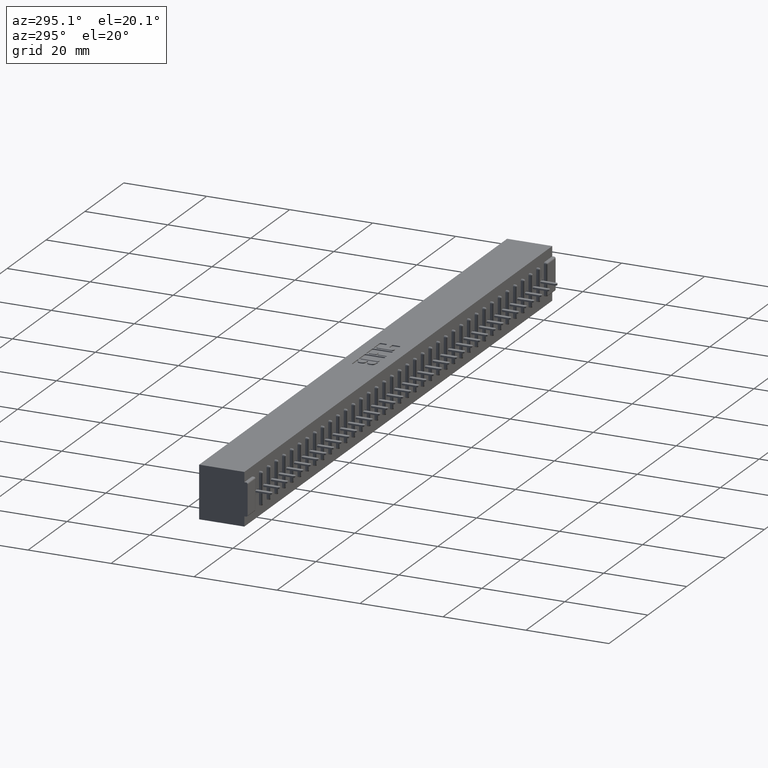
[diagram: clean part render]
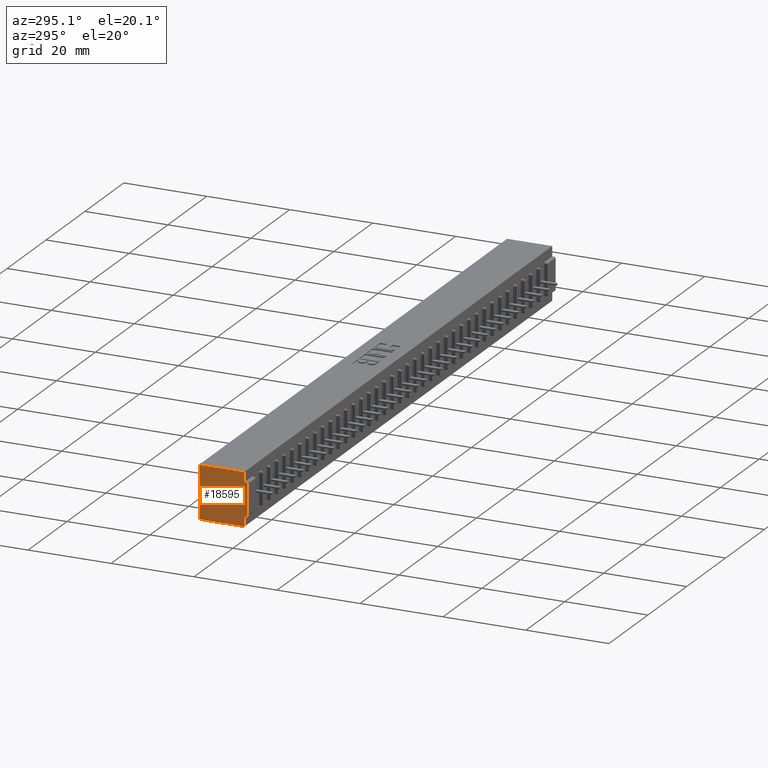
[diagram: same view with one face highlighted and labeled with its STEP entity id]
A machine part, auxiliary view. The second image highlights one B-rep face of the part: STEP entity #18595.
In plain terms, the highlighted planar face has unit normal (1, 0, -0).
Its self-contained STEP definition (entity closure, byte-faithful):
#83 = CARTESIAN_POINT ( 'NONE',  ( 0.2979999999999999900, 0.4600000000000000200, 0.0000000000000000000 ) ) ;
#749 = EDGE_CURVE ( 'NONE', #1779, #20108, #16106, .T. ) ;
#796 = CARTESIAN_POINT ( 'NONE',  ( 0.2979999999999999900, 0.0000000000000000000, -0.1084999999999999400 ) ) ;
#954 = PLANE ( 'NONE',  #8414 ) ;
#1779 = VERTEX_POINT ( 'NONE', #83 ) ;
#2503 = VECTOR ( 'NONE', #5668, 39.37007874015748100 ) ;
#3182 = ORIENTED_EDGE ( 'NONE', *, *, #25985, .F. ) ;
#3316 = EDGE_CURVE ( 'NONE', #27286, #22358, #12498, .T. ) ;
#3491 = VECTOR ( 'NONE', #31690, 39.37007874015748100 ) ;
#3698 = EDGE_CURVE ( 'NONE', #29992, #5218, #4972, .T. ) ;
#4972 = LINE ( 'NONE', #21366, #13339 ) ;
#5007 = VECTOR ( 'NONE', #16647, 39.37007874015748100 ) ;
#5218 = VERTEX_POINT ( 'NONE', #31919 ) ;
#5224 = DIRECTION ( 'NONE',  ( -2.048885995248196700E-016, 0.0000000000000000000, -1.000000000000000000 ) ) ;
#5668 = DIRECTION ( 'NONE',  ( -0.0000000000000000000, 1.000000000000000000, 0.0000000000000000000 ) ) ;
#5899 = EDGE_CURVE ( 'NONE', #10809, #16326, #34858, .T. ) ;
#6281 = AXIS2_PLACEMENT_3D ( 'NONE', #14070, #33117, #16825 ) ;
#6603 = DIRECTION ( 'NONE',  ( -2.048885995248196700E-016, 0.0000000000000000000, -1.000000000000000000 ) ) ;
#7139 = EDGE_CURVE ( 'NONE', #13776, #1779, #22110, .T. ) ;
#7303 = CARTESIAN_POINT ( 'NONE',  ( 0.2979999999999999300, 0.01499999999999999900, -0.09349999999999997200 ) ) ;
#7656 = CARTESIAN_POINT ( 'NONE',  ( 0.2979999999999999900, 0.03100000000000000000, 0.0000000000000000000 ) ) ;
#8036 = VECTOR ( 'NONE', #10639, 39.37007874015748100 ) ;
#8243 = EDGE_CURVE ( 'NONE', #10809, #29992, #31007, .T. ) ;
#8414 = AXIS2_PLACEMENT_3D ( 'NONE', #20485, #23202, #6603 ) ;
#9125 = CARTESIAN_POINT ( 'NONE',  ( 0.2979999999999999900, 0.0000000000000000000, 0.0000000000000000000 ) ) ;
#10639 = DIRECTION ( 'NONE',  ( -0.0000000000000000000, 1.000000000000000000, -0.0000000000000000000 ) ) ;
#10809 = VERTEX_POINT ( 'NONE', #24725 ) ;
#11492 = ORIENTED_EDGE ( 'NONE', *, *, #5899, .T. ) ;
#12379 = FACE_OUTER_BOUND ( 'NONE', #15481, .T. ) ;
#12478 = DIRECTION ( 'NONE',  ( -0.0000000000000000000, 1.000000000000000000, -0.0000000000000000000 ) ) ;
#12498 = LINE ( 'NONE', #14261, #5007 ) ;
#12784 = ORIENTED_EDGE ( 'NONE', *, *, #23053, .F. ) ;
#13339 = VECTOR ( 'NONE', #5224, 39.37007874015748100 ) ;
#13776 = VERTEX_POINT ( 'NONE', #7656 ) ;
#14070 = CARTESIAN_POINT ( 'NONE',  ( 0.2979999999999999900, 0.01499999999999999900, -0.1084999999999999400 ) ) ;
#14120 = CARTESIAN_POINT ( 'NONE',  ( 0.2979999999999999300, 0.0000000000000000000, -0.3915000000000000700 ) ) ;
#14261 = CARTESIAN_POINT ( 'NONE',  ( 0.2979999999999999300, 0.0000000000000000000, -0.09349999999999997200 ) ) ;
#15199 = CARTESIAN_POINT ( 'NONE',  ( 0.2979999999999999900, 0.03100000000000000000, -0.4065000000000000300 ) ) ;
#15481 = EDGE_LOOP ( 'NONE', ( #18858, #21237, #3182, #20504, #17625, #12784, #15610, #17815, #11492, #24966 ) ) ;
#15610 = ORIENTED_EDGE ( 'NONE', *, *, #3698, .F. ) ;
#15880 = DIRECTION ( 'NONE',  ( 0.0000000000000000000, 0.0000000000000000000, -1.000000000000000000 ) ) ;
#15882 = CIRCLE ( 'NONE', #6281, 0.01499999999999999400 ) ;
#16106 = LINE ( 'NONE', #21435, #30660 ) ;
#16310 = LINE ( 'NONE', #24401, #8036 ) ;
#16326 = VERTEX_POINT ( 'NONE', #14120 ) ;
#16647 = DIRECTION ( 'NONE',  ( 0.0000000000000000000, -1.000000000000000000, 0.0000000000000000000 ) ) ;
#16735 = DIRECTION ( 'NONE',  ( -1.000000000000000000, -0.0000000000000000000, 2.048885995248196900E-016 ) ) ;
#16825 = DIRECTION ( 'NONE',  ( 0.0000000000000000000, 0.0000000000000000000, -1.000000000000000000 ) ) ;
#17625 = ORIENTED_EDGE ( 'NONE', *, *, #749, .T. ) ;
#17815 = ORIENTED_EDGE ( 'NONE', *, *, #8243, .F. ) ;
#17937 = LINE ( 'NONE', #26389, #26123 ) ;
#18096 = DIRECTION ( 'NONE',  ( -2.048885995248196700E-016, 0.0000000000000000000, -1.000000000000000000 ) ) ;
#18595 = ADVANCED_FACE ( 'NONE', ( #12379 ), #954, .F. ) ;
#18858 = ORIENTED_EDGE ( 'NONE', *, *, #26978, .T. ) ;
#20108 = VERTEX_POINT ( 'NONE', #27052 ) ;
#20485 = CARTESIAN_POINT ( 'NONE',  ( 0.2979999999999999900, 0.0000000000000000000, 0.0000000000000000000 ) ) ;
#20504 = ORIENTED_EDGE ( 'NONE', *, *, #7139, .T. ) ;
#21237 = ORIENTED_EDGE ( 'NONE', *, *, #3316, .F. ) ;
#21366 = CARTESIAN_POINT ( 'NONE',  ( 0.2979999999999999300, 0.03100000000000000000, -0.4999999999999986100 ) ) ;
#21435 = CARTESIAN_POINT ( 'NONE',  ( 0.2979999999999999900, 0.4600000000000000200, 0.0000000000000000000 ) ) ;
#22110 = LINE ( 'NONE', #9125, #29374 ) ;
#22175 = VERTEX_POINT ( 'NONE', #796 ) ;
#22350 = CARTESIAN_POINT ( 'NONE',  ( 0.2979999999999999300, 0.01499999999999999900, -0.3915000000000000700 ) ) ;
#22358 = VERTEX_POINT ( 'NONE', #7303 ) ;
#22730 = CARTESIAN_POINT ( 'NONE',  ( 0.2979999999999999300, 0.0000000000000000000, -0.4065000000000000300 ) ) ;
#23053 = EDGE_CURVE ( 'NONE', #5218, #20108, #16310, .T. ) ;
#23202 = DIRECTION ( 'NONE',  ( 1.000000000000000000, 0.0000000000000000000, -2.048885995248196700E-016 ) ) ;
#24401 = CARTESIAN_POINT ( 'NONE',  ( 0.2979999999999998800, 0.0000000000000000000, -0.5000000000000001100 ) ) ;
#24660 = DIRECTION ( 'NONE',  ( -2.048885995248196700E-016, 0.0000000000000000000, -1.000000000000000000 ) ) ;
#24725 = CARTESIAN_POINT ( 'NONE',  ( 0.2979999999999999300, 0.01499999999999999900, -0.4065000000000000300 ) ) ;
#24966 = ORIENTED_EDGE ( 'NONE', *, *, #27918, .F. ) ;
#25612 = LINE ( 'NONE', #29017, #3491 ) ;
#25985 = EDGE_CURVE ( 'NONE', #13776, #27286, #25612, .T. ) ;
#26123 = VECTOR ( 'NONE', #18096, 39.37007874015748100 ) ;
#26389 = CARTESIAN_POINT ( 'NONE',  ( 0.2979999999999999900, 0.0000000000000000000, 0.0000000000000000000 ) ) ;
#26978 = EDGE_CURVE ( 'NONE', #22175, #22358, #15882, .T. ) ;
#27052 = CARTESIAN_POINT ( 'NONE',  ( 0.2979999999999998800, 0.4600000000000000200, -0.5000000000000001100 ) ) ;
#27286 = VERTEX_POINT ( 'NONE', #29044 ) ;
#27918 = EDGE_CURVE ( 'NONE', #22175, #16326, #17937, .T. ) ;
#29017 = CARTESIAN_POINT ( 'NONE',  ( 0.2979999999999999300, 0.03100000000000000000, -0.4999999999999986100 ) ) ;
#29044 = CARTESIAN_POINT ( 'NONE',  ( 0.2979999999999999900, 0.03100000000000000000, -0.09349999999999997200 ) ) ;
#29374 = VECTOR ( 'NONE', #12478, 39.37007874015748100 ) ;
#29992 = VERTEX_POINT ( 'NONE', #15199 ) ;
#30660 = VECTOR ( 'NONE', #24660, 39.37007874015748100 ) ;
#31007 = LINE ( 'NONE', #22730, #2503 ) ;
#31690 = DIRECTION ( 'NONE',  ( -2.048885995248196700E-016, 0.0000000000000000000, -1.000000000000000000 ) ) ;
#31919 = CARTESIAN_POINT ( 'NONE',  ( 0.2979999999999999300, 0.03100000000000000000, -0.5000000000000000000 ) ) ;
#33117 = DIRECTION ( 'NONE',  ( -1.000000000000000000, -0.0000000000000000000, 2.048885995248196900E-016 ) ) ;
#34518 = AXIS2_PLACEMENT_3D ( 'NONE', #22350, #16735, #15880 ) ;
#34858 = CIRCLE ( 'NONE', #34518, 0.01499999999999997700 ) ;